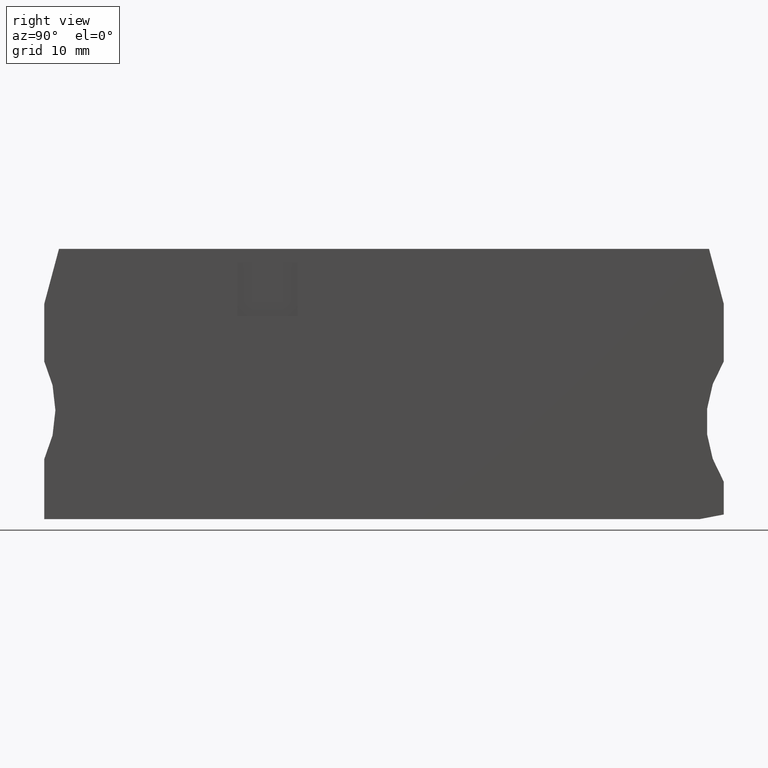
[diagram: clean part render]
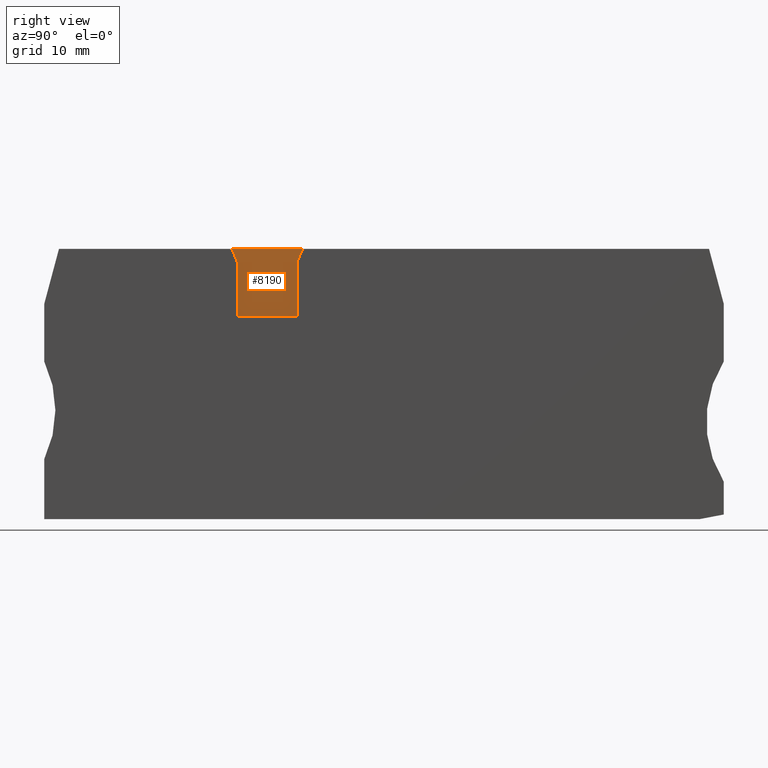
[diagram: same view with one face highlighted and labeled with its STEP entity id]
A machine part, right view. The second image highlights one B-rep face of the part: STEP entity #8190.
In plain terms, the highlighted planar face has unit normal (1, 0, 0).
Its self-contained STEP definition (entity closure, byte-faithful):
#6140=CARTESIAN_POINT('',(1.65066694098248,-2.19999999999897,55.67));
#6150=VERTEX_POINT('',#6140);
#6180=CARTESIAN_POINT('',(31.631009,-2.19999999999897,55.67));
#6190=DIRECTION('',(1.,0.,0.));
#6200=VECTOR('',#6190,1.);
#6210=LINE('',#6180,#6200);
#6220=CARTESIAN_POINT('',(-7.78633249760616,-2.19999999999908,55.67));
#6230=VERTEX_POINT('',#6220);
#6240=EDGE_CURVE('',#6230,#6150,#6210,.T.);
#7730=CARTESIAN_POINT('',(-3.06783277831202,-6.7000000000003,55.67));
#7740=DIRECTION('',(0.,0.,1.));
#7750=DIRECTION('',(1.,0.,0.));
#7760=AXIS2_PLACEMENT_3D('',#7730,#7740,#7750);
#7770=PLANE('',#7760);
#7780=CARTESIAN_POINT('',(31.631009,-11.2000000000016,55.67));
#7790=DIRECTION('',(-1.,0.,0.));
#7800=VECTOR('',#7790,1.);
#7810=LINE('',#7780,#7800);
#7820=CARTESIAN_POINT('',(0.932167221675279,-11.2000000000016,55.67));
#7830=VERTEX_POINT('',#7820);
#7840=CARTESIAN_POINT('',(-7.0678327783245,-11.2000000000016,55.67));
#7850=VERTEX_POINT('',#7840);
#7860=EDGE_CURVE('',#7830,#7850,#7810,.T.);
#7870=ORIENTED_EDGE('',*,*,#7860,.F.);
#7880=CARTESIAN_POINT('',(-7.0678327783245,-22.363129,55.67));
#7890=DIRECTION('',(0.,1.,0.));
#7900=VECTOR('',#7890,1.);
#7910=LINE('',#7880,#7900);
#7920=CARTESIAN_POINT('',(-7.0678327783245,-3.90000000000332,55.67));
#7930=VERTEX_POINT('',#7920);
#7940=EDGE_CURVE('',#7850,#7930,#7910,.T.);
#7950=ORIENTED_EDGE('',*,*,#7940,.F.);
#7960=CARTESIAN_POINT('',(0.735551341396395,-22.363129,55.67));
#7970=DIRECTION('',(-0.389303997086196,0.92110933002153,0.));
#7980=VECTOR('',#7970,1.);
#7990=LINE('',#7960,#7980);
#8000=EDGE_CURVE('',#7930,#6230,#7990,.T.);
#8010=ORIENTED_EDGE('',*,*,#8000,.F.);
#8020=ORIENTED_EDGE('',*,*,#6240,.F.);
#8030=CARTESIAN_POINT('',(-6.87121689832903,-22.363129,55.67));
#8040=DIRECTION('',(-0.389303997098191,-0.92110933001646,0.));
#8050=VECTOR('',#8040,1.);
#8060=LINE('',#8030,#8050);
#8070=CARTESIAN_POINT('',(0.932167221675279,-3.90000000000325,55.67));
#8080=VERTEX_POINT('',#8070);
#8090=EDGE_CURVE('',#6150,#8080,#8060,.T.);
#8100=ORIENTED_EDGE('',*,*,#8090,.F.);
#8110=CARTESIAN_POINT('',(0.932167221675279,-22.363129,55.67));
#8120=DIRECTION('',(0.,-1.,0.));
#8130=VECTOR('',#8120,1.);
#8140=LINE('',#8110,#8130);
#8150=EDGE_CURVE('',#8080,#7830,#8140,.T.);
#8160=ORIENTED_EDGE('',*,*,#8150,.F.);
#8170=EDGE_LOOP('',(#8160,#8100,#8020,#8010,#7950,#7870));
#8180=FACE_OUTER_BOUND('',#8170,.T.);
#8190=ADVANCED_FACE('',(#8180),#7770,.T.);